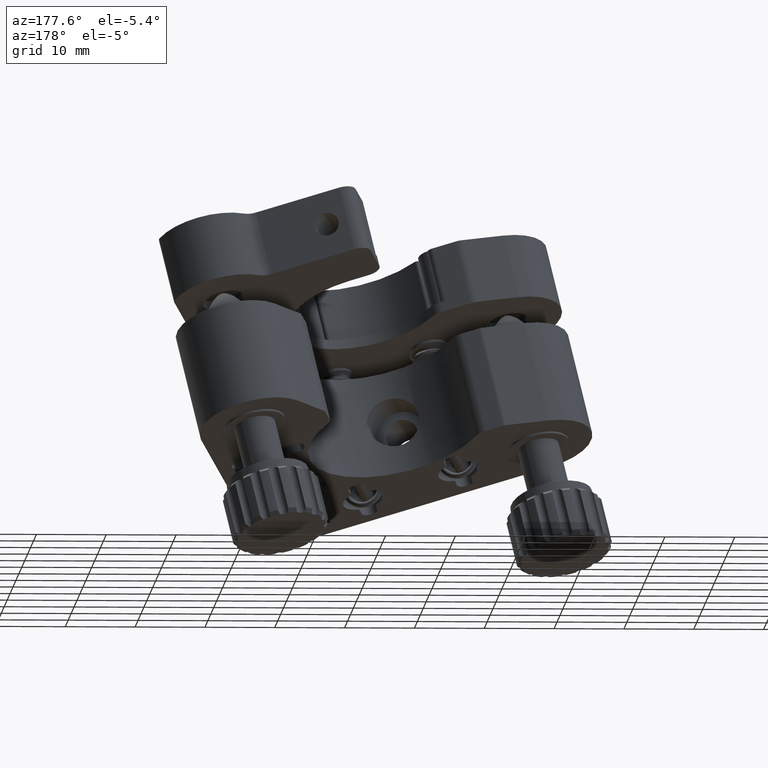
[diagram: clean part render]
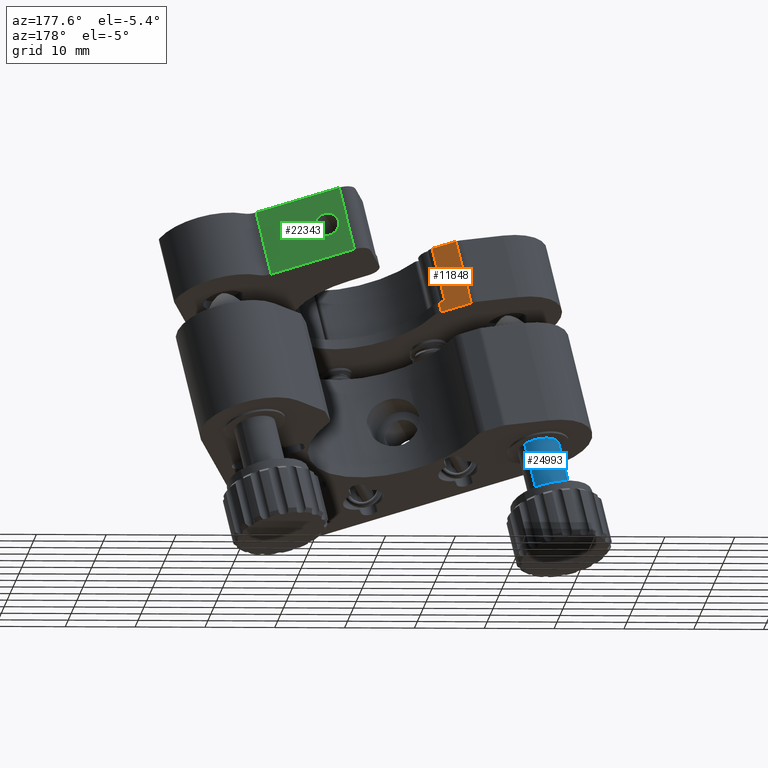
[diagram: same view with three faces highlighted in distinct colors, each labeled with its STEP entity id]
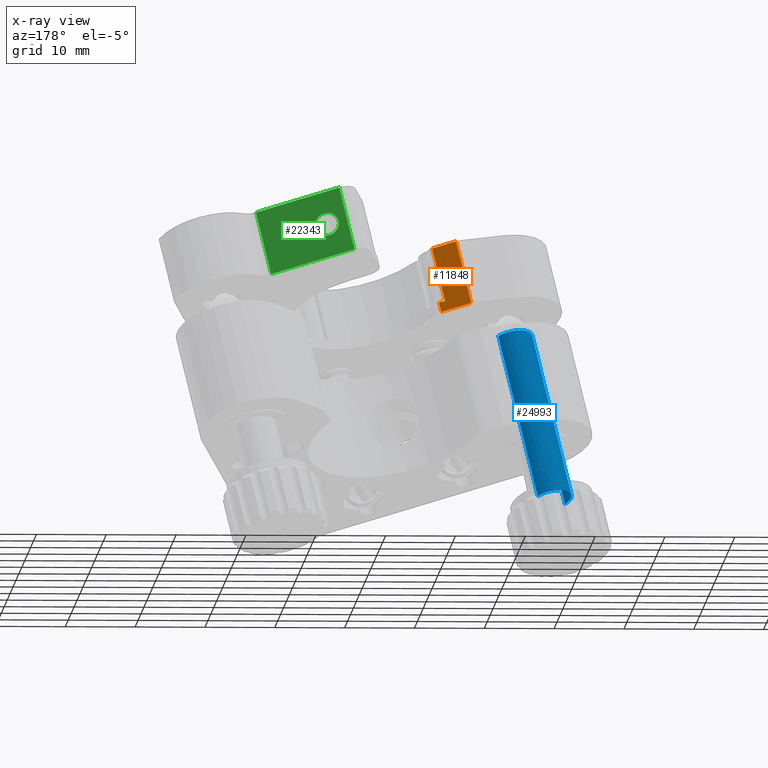
[diagram: x-ray of the same camera — body ghosted, the three highlighted faces saturated]
A machine part, auxiliary view with three faces highlighted in distinct colors.
The next image is the same camera in x-ray (body ghosted, the three faces saturated) — at least one of them is partly hidden behind the body in this view.
Their STEP definitions:

[orange] entity #11848 — the highlighted planar face has unit normal (0.2524, 0.9229, 0.2907).
#2393 = ORIENTED_EDGE ( 'NONE', *, *, #28639, .F. ) ;
#2661 = DIRECTION ( 'NONE',  ( 0.2524368943402556800, 0.9229005954381006600, 0.2907406151810334500 ) ) ;
#4939 = CARTESIAN_POINT ( 'NONE',  ( -601.8036171582214100, -1718.721340221631400, -506.2738574858992700 ) ) ;
#5202 = CARTESIAN_POINT ( 'NONE',  ( -601.2614411700317300, -1718.359225990017900, -507.8940668340976600 ) ) ;
#5289 = ORIENTED_EDGE ( 'NONE', *, *, #23585, .T. ) ;
#5419 = ORIENTED_EDGE ( 'NONE', *, *, #27030, .F. ) ;
#10246 = DIRECTION ( 'NONE',  ( -0.9461293057665247600, 0.1724606737361763800, 0.2740376849709138500 ) ) ;
#11848 = ADVANCED_FACE ( 'NONE', ( #36168 ), #35171, .T. ) ;
#12504 = LINE ( 'NONE', #20274, #29950 ) ;
#12826 = CARTESIAN_POINT ( 'NONE',  ( -605.5110781858762700, -1717.584601149184900, -506.6631984076671500 ) ) ;
#13780 = ORIENTED_EDGE ( 'NONE', *, *, #27834, .F. ) ;
#15310 = CARTESIAN_POINT ( 'NONE',  ( -601.2614411700317300, -1718.359225990017900, -507.8940668340976600 ) ) ;
#15633 = EDGE_LOOP ( 'NONE', ( #5419, #13780, #21530, #2393, #16283, #5289 ) ) ;
#16283 = ORIENTED_EDGE ( 'NONE', *, *, #22632, .T. ) ;
#16563 = VECTOR ( 'NONE', #34931, 1000.000000000000000 ) ;
#18756 = VECTOR ( 'NONE', #27891, 1000.000000000000100 ) ;
#19167 = VECTOR ( 'NONE', #24851, 1000.000000000000100 ) ;
#20071 = CARTESIAN_POINT ( 'NONE',  ( -605.5110781858762700, -1717.584601149184900, -506.6631984076671500 ) ) ;
#20274 = CARTESIAN_POINT ( 'NONE',  ( -601.8036171582214100, -1718.721340221631400, -506.2738574858992700 ) ) ;
#21530 = ORIENTED_EDGE ( 'NONE', *, *, #28270, .F. ) ;
#22335 = CARTESIAN_POINT ( 'NONE',  ( -601.2614411700317300, -1718.359225990017900, -507.8940668340976600 ) ) ;
#22632 = EDGE_CURVE ( 'NONE', #30218, #35783, #25319, .T. ) ;
#22902 = DIRECTION ( 'NONE',  ( -0.9461293057665246500, 0.1724606737361771000, 0.2740376849709140700 ) ) ;
#23585 = EDGE_CURVE ( 'NONE', #35783, #29191, #40134, .T. ) ;
#24406 = LINE ( 'NONE', #42510, #32076 ) ;
#24851 = DIRECTION ( 'NONE',  ( 0.2027682202555435600, -0.3442554385256141900, 0.9167187365271513000 ) ) ;
#25319 = LINE ( 'NONE', #15310, #16563 ) ;
#25630 = DIRECTION ( 'NONE',  ( -0.9461293057665246500, 0.1724606737361771000, 0.2740376849709140700 ) ) ;
#27030 = EDGE_CURVE ( 'NONE', #38221, #29191, #24406, .T. ) ;
#27382 = CARTESIAN_POINT ( 'NONE',  ( -603.4833959833207500, -1721.027155534441100, -497.4960110423955900 ) ) ;
#27834 = EDGE_CURVE ( 'NONE', #30735, #38221, #36121, .T. ) ;
#27876 = LINE ( 'NONE', #5202, #19167 ) ;
#27891 = DIRECTION ( 'NONE',  ( 0.2027682202555435600, -0.3442554385256141900, 0.9167187365271513000 ) ) ;
#27952 = CARTESIAN_POINT ( 'NONE',  ( -600.0800872860492100, -1721.647511449099300, -498.4817482254184700 ) ) ;
#28270 = EDGE_CURVE ( 'NONE', #40709, #30735, #12504, .T. ) ;
#28639 = EDGE_CURVE ( 'NONE', #30218, #40709, #27876, .T. ) ;
#29072 = CARTESIAN_POINT ( 'NONE',  ( -600.9572888396485300, -1718.875609147806200, -506.5189887293070100 ) ) ;
#29191 = VERTEX_POINT ( 'NONE', #27382 ) ;
#29950 = VECTOR ( 'NONE', #10246, 1000.000000000000100 ) ;
#30218 = VERTEX_POINT ( 'NONE', #41613 ) ;
#30284 = CARTESIAN_POINT ( 'NONE',  ( -601.8036171582214100, -1718.721340221631400, -506.2738574858992700 ) ) ;
#30735 = VERTEX_POINT ( 'NONE', #30284 ) ;
#32076 = VECTOR ( 'NONE', #22902, 1000.000000000000000 ) ;
#32462 = VECTOR ( 'NONE', #35721, 1000.000000000000100 ) ;
#34499 = AXIS2_PLACEMENT_3D ( 'NONE', #22335, #2661, #25630 ) ;
#34931 = DIRECTION ( 'NONE',  ( -0.9461293057665246500, 0.1724606737361771000, 0.2740376849709140700 ) ) ;
#35171 = PLANE ( 'NONE',  #34499 ) ;
#35721 = DIRECTION ( 'NONE',  ( 0.2027682202555435600, -0.3442554385256141900, 0.9167187365271513000 ) ) ;
#35783 = VERTEX_POINT ( 'NONE', #20071 ) ;
#36121 = LINE ( 'NONE', #4939, #18756 ) ;
#36168 = FACE_OUTER_BOUND ( 'NONE', #15633, .T. ) ;
#38221 = VERTEX_POINT ( 'NONE', #27952 ) ;
#40134 = LINE ( 'NONE', #12826, #32462 ) ;
#40709 = VERTEX_POINT ( 'NONE', #29072 ) ;
#41613 = CARTESIAN_POINT ( 'NONE',  ( -601.2614411700317300, -1718.359225990017900, -507.8940668340976600 ) ) ;
#42510 = CARTESIAN_POINT ( 'NONE',  ( -599.2337589674763200, -1721.801780375273900, -498.7268794688262100 ) ) ;

[blue] entity #24993 — the highlighted cylindrical surface (edge-blend (fillet) strip) has radius 3 mm, axis along (-0.2028, 0.3443, -0.9167).
#491 = CARTESIAN_POINT ( 'NONE',  ( -620.7799090816947700, -1715.418466621133300, -543.7064717574163500 ) ) ;
#1481 = CARTESIAN_POINT ( 'NONE',  ( -616.7071555771146900, -1711.073516146399700, -542.9756610684953600 ) ) ;
#2743 = DIRECTION ( 'NONE',  ( -0.6787922507633595800, -0.7241584124556216300, -0.1218017814868341800 ) ) ;
#2790 = DIRECTION ( 'NONE',  ( -0.2027682202555432800, 0.3442554385256145800, -0.9167187365271510800 ) ) ;
#2918 = LINE ( 'NONE', #1481, #28077 ) ;
#3158 = CARTESIAN_POINT ( 'NONE',  ( -616.9186183471048300, -1716.344290330497000, -535.0905977842115800 ) ) ;
#3265 = EDGE_CURVE ( 'NONE', #22187, #20608, #30642, .T. ) ;
#3797 = DIRECTION ( 'NONE',  ( -0.2027682202555432800, 0.3442554385256145800, -0.9167187365271510800 ) ) ;
#7790 = AXIS2_PLACEMENT_3D ( 'NONE', #3158, #2790, #2743 ) ;
#8035 = EDGE_CURVE ( 'NONE', #18939, #22187, #27007, .T. ) ;
#9181 = AXIS2_PLACEMENT_3D ( 'NONE', #33328, #3797, #26915 ) ;
#9380 = CARTESIAN_POINT ( 'NONE',  ( -613.6830213727508900, -1727.467406969530000, -511.6213159789660900 ) ) ;
#9488 = CARTESIAN_POINT ( 'NONE',  ( -618.9549950993948600, -1718.516765567864000, -535.4560031286720200 ) ) ;
#10677 = EDGE_CURVE ( 'NONE', #22229, #20608, #2918, .T. ) ;
#14257 = ORIENTED_EDGE ( 'NONE', *, *, #3265, .F. ) ;
#15473 = CARTESIAN_POINT ( 'NONE',  ( -611.6466446204607300, -1725.294931732163100, -511.2559106345056000 ) ) ;
#18280 = VECTOR ( 'NONE', #25742, 1000.000000000000000 ) ;
#18763 = ORIENTED_EDGE ( 'NONE', *, *, #39801, .T. ) ;
#18811 = DIRECTION ( 'NONE',  ( -0.6787922507633595800, -0.7241584124556216300, -0.1218017814868341800 ) ) ;
#18939 = VERTEX_POINT ( 'NONE', #9380 ) ;
#19378 = AXIS2_PLACEMENT_3D ( 'NONE', #15473, #38370, #18811 ) ;
#20608 = VERTEX_POINT ( 'NONE', #36650 ) ;
#22187 = VERTEX_POINT ( 'NONE', #9488 ) ;
#22229 = VERTEX_POINT ( 'NONE', #39578 ) ;
#22894 = ORIENTED_EDGE ( 'NONE', *, *, #8035, .F. ) ;
#24993 = ADVANCED_FACE ( 'NONE', ( #31330 ), #35890, .T. ) ;
#25742 = DIRECTION ( 'NONE',  ( -0.2027682202555432800, 0.3442554385256145800, -0.9167187365271510800 ) ) ;
#26915 = DIRECTION ( 'NONE',  ( -0.6787922507633595800, -0.7241584124556216300, -0.1218017814868341800 ) ) ;
#27007 = LINE ( 'NONE', #491, #18280 ) ;
#27029 = ORIENTED_EDGE ( 'NONE', *, *, #10677, .T. ) ;
#28077 = VECTOR ( 'NONE', #34306, 1000.000000000000000 ) ;
#30642 = CIRCLE ( 'NONE', #7790, 2.999999999999987100 ) ;
#31330 = FACE_OUTER_BOUND ( 'NONE', #35956, .T. ) ;
#31614 = CIRCLE ( 'NONE', #19378, 2.999999999999987100 ) ;
#33328 = CARTESIAN_POINT ( 'NONE',  ( -618.7435323294047300, -1713.245991383766500, -543.3410664129559100 ) ) ;
#34306 = DIRECTION ( 'NONE',  ( -0.2027682202555432800, 0.3442554385256145800, -0.9167187365271510800 ) ) ;
#35890 = CYLINDRICAL_SURFACE ( 'NONE', #9181, 2.999999999999987100 ) ;
#35956 = EDGE_LOOP ( 'NONE', ( #18763, #27029, #14257, #22894 ) ) ;
#36650 = CARTESIAN_POINT ( 'NONE',  ( -614.8822415948147900, -1714.171815093130100, -534.7251924397510300 ) ) ;
#38370 = DIRECTION ( 'NONE',  ( -0.2027682202555432800, 0.3442554385256145800, -0.9167187365271510800 ) ) ;
#39578 = CARTESIAN_POINT ( 'NONE',  ( -609.6102678681705800, -1723.122456494796300, -510.8905052900449800 ) ) ;
#39801 = EDGE_CURVE ( 'NONE', #18939, #22229, #31614, .T. ) ;

[green] entity #22343 — the highlighted planar face has unit normal (0.2524, 0.9229, 0.2907).
#736 = DIRECTION ( 'NONE',  ( 0.2524368943402549600, 0.9229005954381008800, 0.2907406151810334500 ) ) ;
#748 = FACE_OUTER_BOUND ( 'NONE', #19220, .T. ) ;
#1262 = ORIENTED_EDGE ( 'NONE', *, *, #32281, .T. ) ;
#2386 = VECTOR ( 'NONE', #39950, 1000.000000000000100 ) ;
#3097 = ORIENTED_EDGE ( 'NONE', *, *, #11424, .F. ) ;
#3247 = DIRECTION ( 'NONE',  ( 0.2524368943402550700, 0.9229005954381008800, 0.2907406151810336700 ) ) ;
#3894 = CARTESIAN_POINT ( 'NONE',  ( -587.7546930308818700, -1692.916491491463400, -501.3271011982894800 ) ) ;
#3954 = VERTEX_POINT ( 'NONE', #38580 ) ;
#4499 = LINE ( 'NONE', #3894, #21961 ) ;
#4831 = VERTEX_POINT ( 'NONE', #24610 ) ;
#4866 = CIRCLE ( 'NONE', #8390, 1.749999999999988900 ) ;
#7057 = DIRECTION ( 'NONE',  ( 0.2027682202555435600, -0.3442554385256141900, 0.9167187365271513000 ) ) ;
#7437 = FACE_BOUND ( 'NONE', #9893, .T. ) ;
#8390 = AXIS2_PLACEMENT_3D ( 'NONE', #22913, #3247, #26232 ) ;
#8622 = EDGE_CURVE ( 'NONE', #35248, #3954, #29051, .T. ) ;
#9893 = EDGE_LOOP ( 'NONE', ( #12957, #26081 ) ) ;
#11424 = EDGE_CURVE ( 'NONE', #13508, #28814, #18844, .T. ) ;
#12957 = ORIENTED_EDGE ( 'NONE', *, *, #22802, .F. ) ;
#13508 = VERTEX_POINT ( 'NONE', #34254 ) ;
#15100 = LINE ( 'NONE', #26706, #40218 ) ;
#17034 = EDGE_CURVE ( 'NONE', #39913, #13508, #19699, .T. ) ;
#17818 = CARTESIAN_POINT ( 'NONE',  ( -584.2573083977517900, -1694.552703687880200, -499.1698783594889600 ) ) ;
#18025 = CARTESIAN_POINT ( 'NONE',  ( -575.9280767088002900, -1695.072249913165700, -504.7525722604258900 ) ) ;
#18844 = LINE ( 'NONE', #20336, #2386 ) ;
#19220 = EDGE_LOOP ( 'NONE', ( #3097, #21219, #28606, #1262 ) ) ;
#19699 = LINE ( 'NONE', #18025, #36029 ) ;
#20132 = DIRECTION ( 'NONE',  ( -0.9461293057665247600, 0.1724606737361763800, 0.2740376849709138500 ) ) ;
#20336 = CARTESIAN_POINT ( 'NONE',  ( -585.7270108283264600, -1696.359045876719400, -492.1599138330179800 ) ) ;
#20380 = CARTESIAN_POINT ( 'NONE',  ( -587.7546930308818700, -1692.916491491463400, -501.3271011982894800 ) ) ;
#21219 = ORIENTED_EDGE ( 'NONE', *, *, #17034, .F. ) ;
#21961 = VECTOR ( 'NONE', #20132, 1000.000000000000100 ) ;
#22343 = ADVANCED_FACE ( 'NONE', ( #7437, #748 ), #23544, .T. ) ;
#22802 = EDGE_CURVE ( 'NONE', #3954, #35248, #4866, .T. ) ;
#22913 = CARTESIAN_POINT ( 'NONE',  ( -583.9024640123045600, -1695.155150705300000, -497.5656205705664700 ) ) ;
#23544 = PLANE ( 'NONE',  #28416 ) ;
#23682 = DIRECTION ( 'NONE',  ( 0.2027682202555435600, -0.3442554385256141900, 0.9167187365271513000 ) ) ;
#24610 = CARTESIAN_POINT ( 'NONE',  ( -587.7546930308818700, -1692.916491491463400, -501.3271011982894800 ) ) ;
#26081 = ORIENTED_EDGE ( 'NONE', *, *, #8622, .F. ) ;
#26232 = DIRECTION ( 'NONE',  ( 0.2027682202555412800, -0.3442554385255668900, 0.9167187365271694000 ) ) ;
#26706 = CARTESIAN_POINT ( 'NONE',  ( -587.7546930308818700, -1692.916491491463400, -501.3271011982894800 ) ) ;
#28416 = AXIS2_PLACEMENT_3D ( 'NONE', #20380, #736, #23682 ) ;
#28606 = ORIENTED_EDGE ( 'NONE', *, *, #30728, .T. ) ;
#28814 = VERTEX_POINT ( 'NONE', #41987 ) ;
#28820 = CARTESIAN_POINT ( 'NONE',  ( -575.9280767088002900, -1695.072249913165700, -504.7525722604258900 ) ) ;
#29051 = CIRCLE ( 'NONE', #30316, 1.749999999999988900 ) ;
#30316 = AXIS2_PLACEMENT_3D ( 'NONE', #39098, #39054, #39880 ) ;
#30728 = EDGE_CURVE ( 'NONE', #39913, #4831, #4499, .T. ) ;
#32281 = EDGE_CURVE ( 'NONE', #4831, #28814, #15100, .T. ) ;
#34186 = DIRECTION ( 'NONE',  ( 0.2027682202555435600, -0.3442554385256141900, 0.9167187365271513000 ) ) ;
#34254 = CARTESIAN_POINT ( 'NONE',  ( -573.9003945062448800, -1698.514804298421700, -495.5853848951543900 ) ) ;
#35248 = VERTEX_POINT ( 'NONE', #17818 ) ;
#36029 = VECTOR ( 'NONE', #34186, 1000.000000000000100 ) ;
#38580 = CARTESIAN_POINT ( 'NONE',  ( -583.5476196268574500, -1695.757597722719800, -495.9613627816440300 ) ) ;
#39054 = DIRECTION ( 'NONE',  ( 0.2524368943402550700, 0.9229005954381008800, 0.2907406151810336700 ) ) ;
#39098 = CARTESIAN_POINT ( 'NONE',  ( -583.9024640123045600, -1695.155150705300000, -497.5656205705664700 ) ) ;
#39880 = DIRECTION ( 'NONE',  ( 0.2027682202555412800, -0.3442554385255668900, 0.9167187365271694000 ) ) ;
#39913 = VERTEX_POINT ( 'NONE', #28820 ) ;
#39950 = DIRECTION ( 'NONE',  ( -0.9461293057665247600, 0.1724606737361763800, 0.2740376849709138500 ) ) ;
#40218 = VECTOR ( 'NONE', #7057, 1000.000000000000100 ) ;
#41987 = CARTESIAN_POINT ( 'NONE',  ( -585.7270108283264600, -1696.359045876719400, -492.1599138330179800 ) ) ;